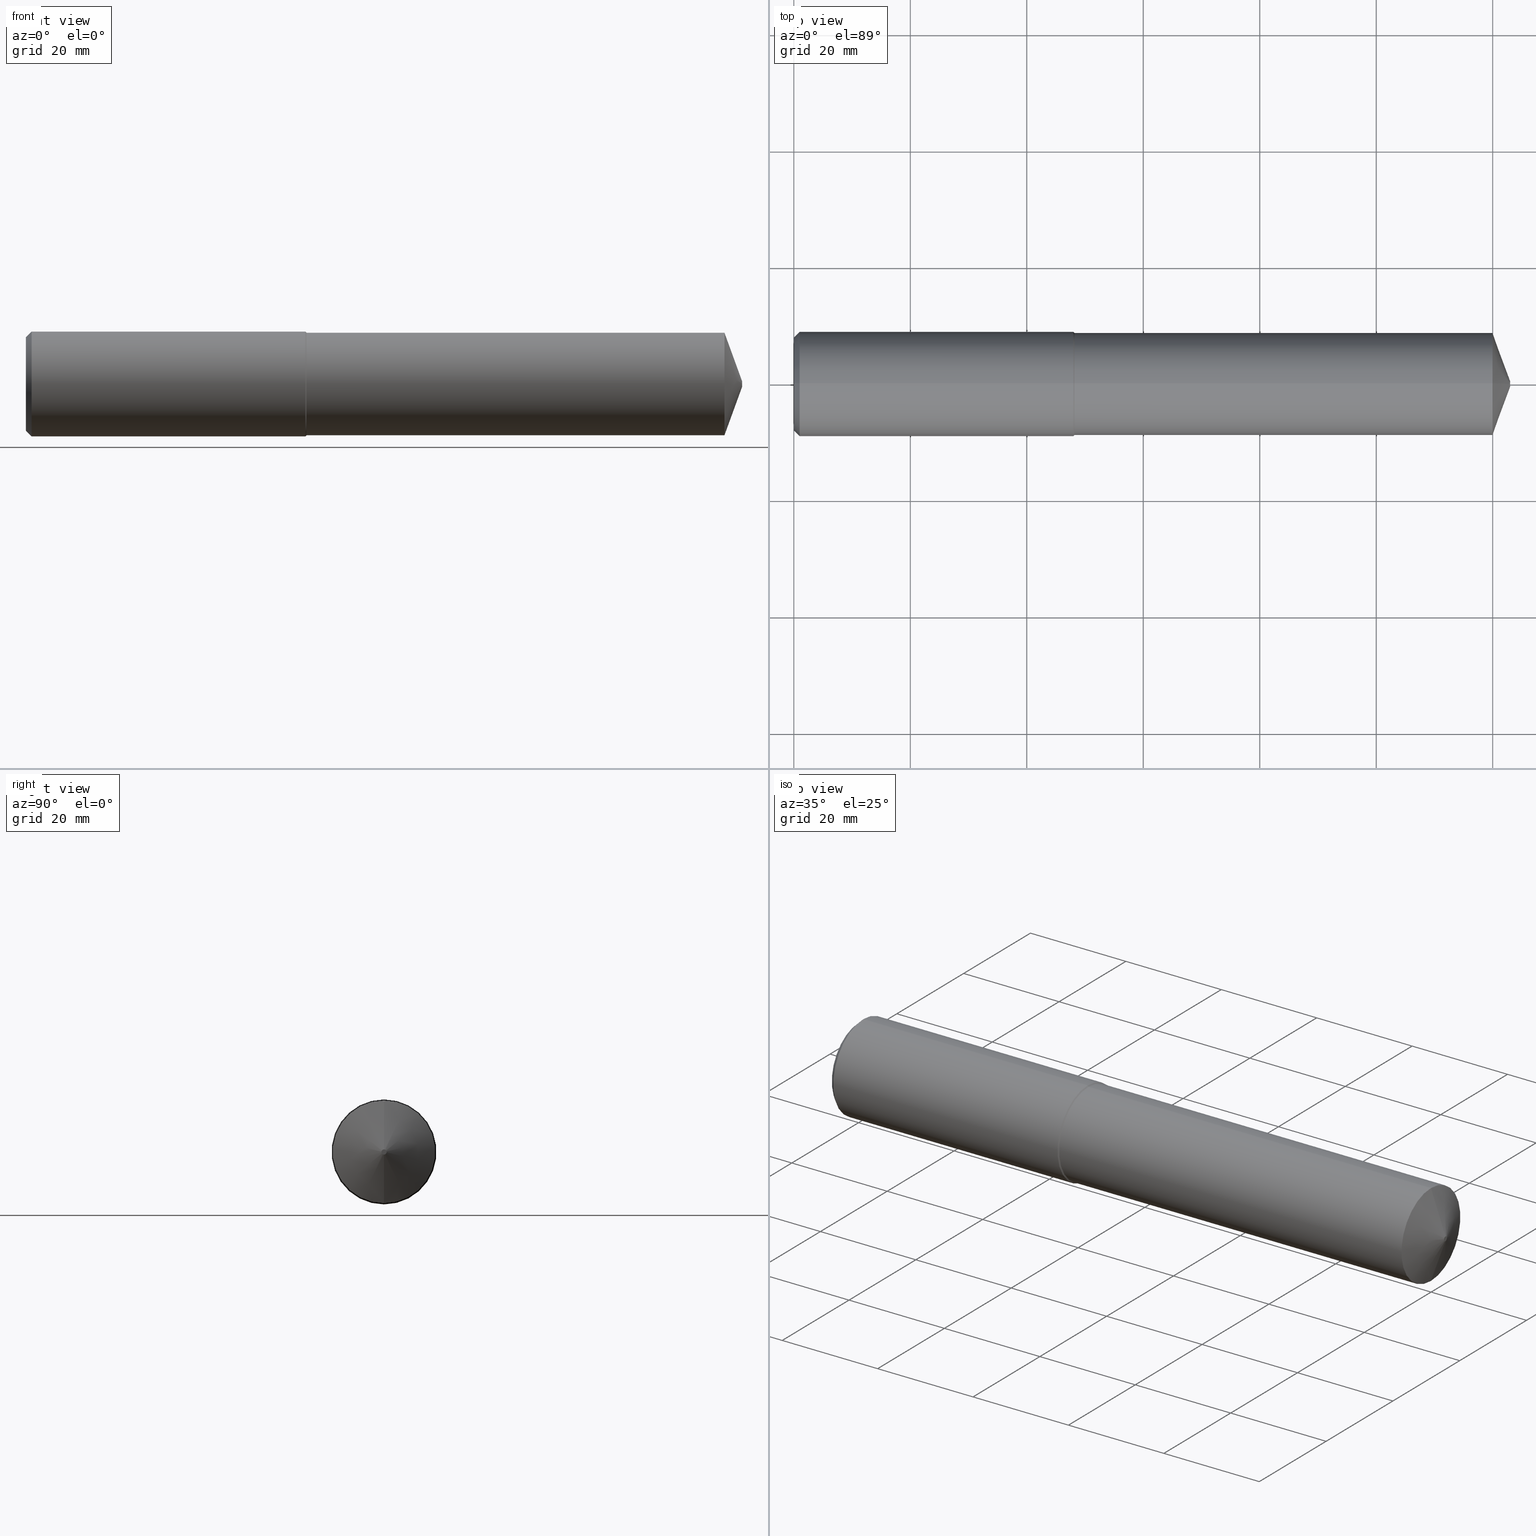
[diagram: canonical four-view strip — front | top / right | iso, engineering-drawing reading convention]
A machine part, canonical four-view strip (front | top / right | iso — engineering-drawing reading convention). The complete STEP part file that produces these views, byte-faithful:
ISO-10303-21;
HEADER;
FILE_DESCRIPTION (( 'STEP AP203' ),
    '1' );
FILE_NAME ('407022-DFX3-693A.STEP',
    '2024-10-03T14:35:29',
    ( '' ),
    ( '' ),
    'SwSTEP 2.0',
    'SolidWorks 2024',
    '' );
FILE_SCHEMA (( 'CONFIG_CONTROL_DESIGN' ));
ENDSEC;

DATA;
#1 = CIRCLE ( 'NONE', #323, 0.3543307086614175261 ) ;
#2 = APPROVAL_PERSON_ORGANIZATION ( #203, #12, #65 ) ;
#3 = CYLINDRICAL_SURFACE ( 'NONE', #207, 0.3465000000000003633 ) ;
#4 = CARTESIAN_POINT ( 'NONE',  ( -8.537024980200822558E-18, 4.098227477461613409E-17, 0.3149606299212597271 ) ) ;
#5 = VECTOR ( 'NONE', #171, 39.37007874015748854 ) ;
#6 = DIRECTION ( 'NONE',  ( -1.000000000000000000, 0.000000000000000000, 0.000000000000000000 ) ) ;
#7 = ADVANCED_FACE ( 'NONE', ( #358 ), #10, .T. ) ;
#8 = DIRECTION ( 'NONE',  ( 1.000000000000000000, -0.000000000000000000, -0.000000000000000000 ) ) ;
#9 = COORDINATED_UNIVERSAL_TIME_OFFSET ( 8, 0, .BEHIND. ) ;
#10 = CYLINDRICAL_SURFACE ( 'NONE', #52, 0.3543307086614173596 ) ;
#11 = CIRCLE ( 'NONE', #286, 0.01750000000000059841 ) ;
#12 = APPROVAL ( #55, 'UNSPECIFIED' ) ;
#13 = LINE ( 'NONE', #108, #111 ) ;
#14 = VERTEX_POINT ( 'NONE', #299 ) ;
#15 = DIRECTION ( 'NONE',  ( 1.000000000000000000, 0.000000000000000000, -0.000000000000000000 ) ) ;
#16 = VERTEX_POINT ( 'NONE', #4 ) ;
#17 = CARTESIAN_POINT ( 'NONE',  ( 4.842519685039370358, 0.000000000000000000, 0.000000000000000000 ) ) ;
#18 = ORIENTED_EDGE ( 'NONE', *, *, #342, .T. ) ;
#19 = AXIS2_PLACEMENT_3D ( 'NONE', #101, #166, #277 ) ;
#20 = CARTESIAN_POINT ( 'NONE',  ( -0.03808593750000075634, 4.243401159045583642E-17, 0.3465000000000003633 ) ) ;
#21 = EDGE_CURVE ( 'NONE', #167, #16, #102, .T. ) ;
#22 = VERTEX_POINT ( 'NONE', #150 ) ;
#23 = DIRECTION ( 'NONE',  ( 1.000000000000000000, -0.000000000000000000, -0.000000000000000000 ) ) ;
#24 = ORIENTED_EDGE ( 'NONE', *, *, #216, .F. ) ;
#25 = APPLICATION_PROTOCOL_DEFINITION ( 'international standard', 'config_control_design', 1994, #73 ) ;
#26 = COORDINATED_UNIVERSAL_TIME_OFFSET ( 8, 0, .BEHIND. ) ;
#27 = EDGE_CURVE ( 'NONE', #200, #22, #96, .T. ) ;
#28 = CONICAL_SURFACE ( 'NONE', #228, 0.3543307086614172485, 0.7853981633974485010 ) ;
#29 = APPROVAL_STATUS ( 'not_yet_approved' ) ;
#30 = DIRECTION ( 'NONE',  ( 1.000000000000000000, -0.000000000000000000, -0.000000000000000000 ) ) ;
#31 = CIRCLE ( 'NONE', #272, 0.3149606299212597271 ) ;
#32 = CARTESIAN_POINT ( 'NONE',  ( 1.897594488188976802, 4.243401159045581176E-17, -0.3465000000000001967 ) ) ;
#33 = DATE_AND_TIME ( #374, #38 ) ;
#34 = CYLINDRICAL_SURFACE ( 'NONE', #117, 0.3465000000000003633 ) ;
#35 = ADVANCED_FACE ( 'NONE', ( #156 ), #3, .T. ) ;
#36 = AXIS2_PLACEMENT_3D ( 'NONE', #352, #211, #180 ) ;
#37 = DATE_AND_TIME ( #359, #85 ) ;
#38 = LOCAL_TIME ( 7, 35, 29.00000000000000000, #58 ) ;
#39 = LINE ( 'NONE', #348, #356 ) ;
#40 = DIMENSIONAL_EXPONENTS ( 1.000000000000000000, 0.000000000000000000, 0.000000000000000000, 0.000000000000000000, 0.000000000000000000, 0.000000000000000000, 0.000000000000000000 ) ;
#41 = CARTESIAN_POINT ( 'NONE',  ( -8.537024980200822558E-18, 0.000000000000000000, -0.3149606299212597271 ) ) ;
#42 = APPLICATION_CONTEXT ( 'configuration controlled 3d designs of mechanical parts and assemblies' ) ;
#43 = DIRECTION ( 'NONE',  ( 0.000000000000000000, 0.000000000000000000, -1.000000000000000000 ) ) ;
#44 = ORIENTED_EDGE ( 'NONE', *, *, #149, .T. ) ;
#45 = AXIS2_PLACEMENT_3D ( 'NONE', #64, #69, #326 ) ;
#46 = DIRECTION ( 'NONE',  ( -0.3420201433256673806, 1.150791560227850763E-16, -0.9396926207859088720 ) ) ;
#47 = DIRECTION ( 'NONE',  ( 0.000000000000000000, 0.000000000000000000, -1.000000000000000000 ) ) ;
#48 = ORIENTED_EDGE ( 'NONE', *, *, #202, .T. ) ;
#49 = DIRECTION ( 'NONE',  ( 1.000000000000000000, -0.000000000000000000, -0.000000000000000000 ) ) ;
#50 = EDGE_CURVE ( 'NONE', #167, #144, #39, .T. ) ;
#51 = ORIENTED_EDGE ( 'NONE', *, *, #375, .F. ) ;
#52 = AXIS2_PLACEMENT_3D ( 'NONE', #239, #152, #188 ) ;
#53 = CARTESIAN_POINT ( 'NONE',  ( 1.897594488188976802, 0.000000000000000000, 0.3465000000000001967 ) ) ;
#54 = LOCAL_TIME ( 7, 35, 29.00000000000000000, #181 ) ;
#55 = APPROVAL_STATUS ( 'not_yet_approved' ) ;
#56 = ORIENTED_EDGE ( 'NONE', *, *, #21, .T. ) ;
#57 = CC_DESIGN_DATE_AND_TIME_ASSIGNMENT ( #33, #176, ( #279 ) ) ;
#58 = COORDINATED_UNIVERSAL_TIME_OFFSET ( 8, 0, .BEHIND. ) ;
#59 = ORIENTED_EDGE ( 'NONE', *, *, #210, .T. ) ;
#60 = DIRECTION ( 'NONE',  ( 1.000000000000000000, 0.000000000000000000, 0.000000000000000000 ) ) ;
#61 = ORIENTED_EDGE ( 'NONE', *, *, #330, .T. ) ;
#62 = CIRCLE ( 'NONE', #135, 0.3543307086614172485 ) ;
#63 = DESIGN_CONTEXT ( 'detailed design', #42, 'design' ) ;
#64 = CARTESIAN_POINT ( 'NONE',  ( 1.897594488188976802, 0.000000000000000000, 0.000000000000000000 ) ) ;
#65 = APPROVAL_ROLE ( '' ) ;
#66 = ADVANCED_FACE ( 'NONE', ( #235 ), #121, .T. ) ;
#67 = CARTESIAN_POINT ( 'NONE',  ( 4.842519685039370358, 0.000000000000000000, 0.000000000000000000 ) ) ;
#68 = DATE_AND_TIME ( #125, #290 ) ;
#69 = DIRECTION ( 'NONE',  ( -1.000000000000000000, 0.000000000000000000, 0.000000000000000000 ) ) ;
#70 = CONICAL_SURFACE ( 'NONE', #45, 0.3465000000000001967, 0.7853981633974265186 ) ;
#71 = DIRECTION ( 'NONE',  ( -1.000000000000000000, 0.000000000000000000, 0.000000000000000000 ) ) ;
#72 = ORIENTED_EDGE ( 'NONE', *, *, #284, .F. ) ;
#73 = APPLICATION_CONTEXT ( 'configuration controlled 3d designs of mechanical parts and assemblies' ) ;
#74 = DIRECTION ( 'NONE',  ( 0.000000000000000000, 0.000000000000000000, -1.000000000000000000 ) ) ;
#75 = ORIENTED_EDGE ( 'NONE', *, *, #224, .F. ) ;
#76 = AXIS2_PLACEMENT_3D ( 'NONE', #163, #336, #129 ) ;
#77 = PERSON ( 'UNSPECIFIED', 'UNSPECIFIED', 'UNSPECIFIED', ('UNSPECIFIED'), ('UNSPECIFIED'), ('UNSPECIFIED') ) ;
#78 = CARTESIAN_POINT ( 'NONE',  ( 1.889763779527559251, 0.000000000000000000, 0.000000000000000000 ) ) ;
#79 = VERTEX_POINT ( 'NONE', #208 ) ;
#80 = DIRECTION ( 'NONE',  ( 0.000000000000000000, 0.000000000000000000, -1.000000000000000000 ) ) ;
#81 = ORIENTED_EDGE ( 'NONE', *, *, #284, .T. ) ;
#82 = LINE ( 'NONE', #367, #243 ) ;
#83 = EDGE_LOOP ( 'NONE', ( #305, #226, #161, #61 ) ) ;
#84 = CARTESIAN_POINT ( 'NONE',  ( 0.03937007874015747977, 0.000000000000000000, 0.000000000000000000 ) ) ;
#85 = LOCAL_TIME ( 7, 35, 29.00000000000000000, #275 ) ;
#86 = CC_DESIGN_PERSON_AND_ORGANIZATION_ASSIGNMENT ( #174, #320, ( #234 ) ) ;
#87 = LENGTH_MEASURE_WITH_UNIT ( LENGTH_MEASURE( 0.02539999999999999897 ), #312 );
#88 = APPROVAL_DATE_TIME ( #122, #231 ) ;
#89 = PERSON_AND_ORGANIZATION_ROLE ( 'design_supplier' ) ;
#90 = VECTOR ( 'NONE', #46, 39.37007874015748143 ) ;
#91 = ADVANCED_FACE ( 'NONE', ( #126 ), #301, .T. ) ;
#92 = CARTESIAN_POINT ( 'NONE',  ( 4.842519685039370358, 0.000000000000000000, 0.000000000000000000 ) ) ;
#93 = CC_DESIGN_PERSON_AND_ORGANIZATION_ASSIGNMENT ( #343, #89, ( #345 ) ) ;
#94 = DIRECTION ( 'NONE',  ( -0.7071067811865627828, 8.659560562354743039E-17, -0.7071067811865320296 ) ) ;
#95 = DIRECTION ( 'NONE',  ( 1.000000000000000000, -0.000000000000000000, -0.000000000000000000 ) ) ;
#96 = LINE ( 'NONE', #263, #344 ) ;
#97 = AXIS2_PLACEMENT_3D ( 'NONE', #17, #255, #80 ) ;
#98 = PLANE ( 'NONE',  #148 ) ;
#99 = DIRECTION ( 'NONE',  ( 1.000000000000000000, -0.000000000000000000, -0.000000000000000000 ) ) ;
#100 = PRODUCT_RELATED_PRODUCT_CATEGORY ( 'detail', '', ( #234 ) ) ;
#101 = CARTESIAN_POINT ( 'NONE',  ( -0.03808593750000075634, 0.000000000000000000, 0.000000000000000000 ) ) ;
#102 = CIRCLE ( 'NONE', #169, 0.3149606299212597271 ) ;
#103 = APPROVAL ( #327, 'UNSPECIFIED' ) ;
#104 = ORIENTED_EDGE ( 'NONE', *, *, #27, .F. ) ;
#105 = CARTESIAN_POINT ( 'NONE',  ( -0.03808593750000075634, 0.000000000000000000, -0.3543307086614173596 ) ) ;
#106 = EDGE_LOOP ( 'NONE', ( #252, #317, #113, #223 ) ) ;
#107 = MANIFOLD_SOLID_BREP ( 'Body', #313 ) ;
#108 = CARTESIAN_POINT ( 'NONE',  ( -0.03808593750000075634, 0.000000000000000000, -0.3465000000000003633 ) ) ;
#109 = EDGE_LOOP ( 'NONE', ( #302, #48, #334, #24 ) ) ;
#110 = DIRECTION ( 'NONE',  ( 1.000000000000000000, -0.000000000000000000, -0.000000000000000000 ) ) ;
#111 = VECTOR ( 'NONE', #49, 39.37007874015748143 ) ;
#112 = CALENDAR_DATE ( 2024, 3, 10 ) ;
#113 = ORIENTED_EDGE ( 'NONE', *, *, #251, .T. ) ;
#114 = EDGE_LOOP ( 'NONE', ( #276, #136, #331, #194 ) ) ;
#115 = ADVANCED_FACE ( 'NONE', ( #350 ), #70, .T. ) ;
#116 =( NAMED_UNIT ( * ) SI_UNIT ( $, .STERADIAN. ) SOLID_ANGLE_UNIT ( ) );
#117 = AXIS2_PLACEMENT_3D ( 'NONE', #184, #8, #124 ) ;
#118 = DIRECTION ( 'NONE',  ( 0.7071067811865473507, 0.000000000000000000, -0.7071067811865476838 ) ) ;
#119 = EDGE_CURVE ( 'NONE', #144, #200, #142, .T. ) ;
#120 = DIRECTION ( 'NONE',  ( 1.000000000000000000, -0.000000000000000000, -0.000000000000000000 ) ) ;
#121 = CONICAL_SURFACE ( 'NONE', #373, 0.01750000000000059841, 1.221730476396032161 ) ;
#122 = DATE_AND_TIME ( #232, #262 ) ;
#123 = CARTESIAN_POINT ( 'NONE',  ( 0.03937007874015747977, 0.000000000000000000, 0.000000000000000000 ) ) ;
#124 = DIRECTION ( 'NONE',  ( 0.000000000000000000, 0.000000000000000000, -1.000000000000000000 ) ) ;
#125 = CALENDAR_DATE ( 2024, 3, 10 ) ;
#126 = FACE_OUTER_BOUND ( 'NONE', #133, .T. ) ;
#127 = VECTOR ( 'NONE', #99, 39.37007874015748143 ) ;
#128 = CC_DESIGN_APPROVAL ( #103, ( #198 ) ) ;
#129 = DIRECTION ( 'NONE',  ( 0.000000000000000000, 0.000000000000000000, -1.000000000000000000 ) ) ;
#130 = ORIENTED_EDGE ( 'NONE', *, *, #50, .F. ) ;
#131 = CARTESIAN_POINT ( 'NONE',  ( 1.897594488188976802, 0.000000000000000000, 0.000000000000000000 ) ) ;
#132 = ADVANCED_FACE ( 'NONE', ( #242 ), #281, .T. ) ;
#133 = EDGE_LOOP ( 'NONE', ( #192, #51, #282, #337 ) ) ;
#134 = DIRECTION ( 'NONE',  ( 0.000000000000000000, 0.000000000000000000, -1.000000000000000000 ) ) ;
#135 = AXIS2_PLACEMENT_3D ( 'NONE', #304, #218, #47 ) ;
#136 = ORIENTED_EDGE ( 'NONE', *, *, #27, .T. ) ;
#137 = DIRECTION ( 'NONE',  ( 1.000000000000000000, -0.000000000000000000, -0.000000000000000000 ) ) ;
#138 = ORIENTED_EDGE ( 'NONE', *, *, #362, .T. ) ;
#139 = CYLINDRICAL_SURFACE ( 'NONE', #19, 0.3543307086614173596 ) ;
#140 = ORIENTED_EDGE ( 'NONE', *, *, #362, .F. ) ;
#141 = VERTEX_POINT ( 'NONE', #182 ) ;
#142 = CIRCLE ( 'NONE', #191, 0.3543307086614172485 ) ;
#143 = DIRECTION ( 'NONE',  ( 0.000000000000000000, 0.000000000000000000, -1.000000000000000000 ) ) ;
#144 = VERTEX_POINT ( 'NONE', #321 ) ;
#145 = CARTESIAN_POINT ( 'NONE',  ( 4.722773477965789723, 4.243401159045585491E-17, -0.3465000000000006408 ) ) ;
#146 = EDGE_CURVE ( 'NONE', #141, #165, #268, .T. ) ;
#147 = CARTESIAN_POINT ( 'NONE',  ( 1.897594488188976802, 0.000000000000000000, 0.000000000000000000 ) ) ;
#148 = AXIS2_PLACEMENT_3D ( 'NONE', #215, #15, #338 ) ;
#149 = EDGE_CURVE ( 'NONE', #256, #79, #11, .T. ) ;
#150 = CARTESIAN_POINT ( 'NONE',  ( 1.889763779527559251, 0.000000000000000000, 0.3543307086614175261 ) ) ;
#151 = UNCERTAINTY_MEASURE_WITH_UNIT (LENGTH_MEASURE( 1.000000000000000082E-05 ), #378, 'distance_accuracy_value', 'NONE');
#152 = DIRECTION ( 'NONE',  ( 1.000000000000000000, -0.000000000000000000, -0.000000000000000000 ) ) ;
#153 = APPROVAL_ROLE ( '' ) ;
#154 = DIRECTION ( 'NONE',  ( 1.000000000000000000, -0.000000000000000000, -0.000000000000000000 ) ) ;
#155 = CIRCLE ( 'NONE', #357, 0.3465000000000001967 ) ;
#156 = FACE_OUTER_BOUND ( 'NONE', #106, .T. ) ;
#157 = ADVANCED_FACE ( 'NONE', ( #298 ), #34, .T. ) ;
#158 = CARTESIAN_POINT ( 'NONE',  ( 4.722773477965789723, 0.000000000000000000, 0.3465000000000006408 ) ) ;
#159 = DIRECTION ( 'NONE',  ( -1.000000000000000000, 0.000000000000000000, 0.000000000000000000 ) ) ;
#160 = VECTOR ( 'NONE', #190, 39.37007874015748143 ) ;
#161 = ORIENTED_EDGE ( 'NONE', *, *, #216, .T. ) ;
#162 = CC_DESIGN_PERSON_AND_ORGANIZATION_ASSIGNMENT ( #259, #376, ( #345 ) ) ;
#163 = CARTESIAN_POINT ( 'NONE',  ( 4.722773477965789723, 0.000000000000000000, 0.000000000000000000 ) ) ;
#164 = PERSON_AND_ORGANIZATION ( #77, #296 ) ;
#165 = VERTEX_POINT ( 'NONE', #240 ) ;
#166 = DIRECTION ( 'NONE',  ( 1.000000000000000000, -0.000000000000000000, -0.000000000000000000 ) ) ;
#167 = VERTEX_POINT ( 'NONE', #41 ) ;
#168 = DIRECTION ( 'NONE',  ( 1.000000000000000000, -0.000000000000000000, -0.000000000000000000 ) ) ;
#169 = AXIS2_PLACEMENT_3D ( 'NONE', #297, #120, #209 ) ;
#170 = ORIENTED_EDGE ( 'NONE', *, *, #119, .F. ) ;
#171 = DIRECTION ( 'NONE',  ( -0.7071067811865627828, 0.000000000000000000, 0.7071067811865320296 ) ) ;
#172 = DIRECTION ( 'NONE',  ( 0.000000000000000000, 0.000000000000000000, -1.000000000000000000 ) ) ;
#173 = VERTEX_POINT ( 'NONE', #158 ) ;
#174 = PERSON_AND_ORGANIZATION ( #77, #296 ) ;
#175 = CONICAL_SURFACE ( 'NONE', #185, 0.01750000000000059841, 1.221730476396032161 ) ;
#176 = DATE_TIME_ROLE ( 'creation_date' ) ;
#177 = CC_DESIGN_DATE_AND_TIME_ASSIGNMENT ( #68, #183, ( #198 ) ) ;
#178 = PERSON_AND_ORGANIZATION_ROLE ( 'classification_officer' ) ;
#179 = VECTOR ( 'NONE', #23, 39.37007874015748143 ) ;
#180 = DIRECTION ( 'NONE',  ( 0.000000000000000000, 0.000000000000000000, -1.000000000000000000 ) ) ;
#181 = COORDINATED_UNIVERSAL_TIME_OFFSET ( 8, 0, .BEHIND. ) ;
#182 = CARTESIAN_POINT ( 'NONE',  ( 1.897594488188976802, 0.000000000000000000, -0.3465000000000001967 ) ) ;
#183 = DATE_TIME_ROLE ( 'classification_date' ) ;
#184 = CARTESIAN_POINT ( 'NONE',  ( -0.03808593750000075634, 0.000000000000000000, 0.000000000000000000 ) ) ;
#185 = AXIS2_PLACEMENT_3D ( 'NONE', #196, #332, #307 ) ;
#186 = ADVANCED_FACE ( 'NONE', ( #269 ), #98, .T. ) ;
#187 = DIRECTION ( 'NONE',  ( 0.000000000000000000, 0.000000000000000000, -1.000000000000000000 ) ) ;
#188 = DIRECTION ( 'NONE',  ( 0.000000000000000000, 0.000000000000000000, -1.000000000000000000 ) ) ;
#189 = ADVANCED_FACE ( 'NONE', ( #300 ), #28, .T. ) ;
#190 = DIRECTION ( 'NONE',  ( -0.3420201433256673806, 0.000000000000000000, 0.9396926207859088720 ) ) ;
#191 = AXIS2_PLACEMENT_3D ( 'NONE', #123, #292, #187 ) ;
#192 = ORIENTED_EDGE ( 'NONE', *, *, #146, .F. ) ;
#193 = DIRECTION ( 'NONE',  ( 0.000000000000000000, 0.000000000000000000, -1.000000000000000000 ) ) ;
#194 = ORIENTED_EDGE ( 'NONE', *, *, #316, .F. ) ;
#195 = DIRECTION ( 'NONE',  ( 1.000000000000000000, -0.000000000000000000, -0.000000000000000000 ) ) ;
#196 = CARTESIAN_POINT ( 'NONE',  ( 4.842519685039370358, 0.000000000000000000, 0.000000000000000000 ) ) ;
#197 = CIRCLE ( 'NONE', #76, 0.3465000000000005298 ) ;
#198 = SECURITY_CLASSIFICATION ( '', '', #205 ) ;
#199 = FACE_OUTER_BOUND ( 'NONE', #217, .T. ) ;
#200 = VERTEX_POINT ( 'NONE', #253 ) ;
#201 = APPLICATION_PROTOCOL_DEFINITION ( 'international standard', 'config_control_design', 1994, #42 ) ;
#202 = EDGE_CURVE ( 'NONE', #256, #360, #369, .T. ) ;
#203 = PERSON_AND_ORGANIZATION ( #77, #296 ) ;
#204 = CC_DESIGN_APPROVAL ( #12, ( #279 ) ) ;
#205 = SECURITY_CLASSIFICATION_LEVEL ( 'unclassified' ) ;
#206 =( NAMED_UNIT ( * ) PLANE_ANGLE_UNIT ( ) SI_UNIT ( $, .RADIAN. ) );
#207 = AXIS2_PLACEMENT_3D ( 'NONE', #324, #237, #264 ) ;
#208 = CARTESIAN_POINT ( 'NONE',  ( 4.842519685039370358, 0.000000000000000000, 0.01750000000000059841 ) ) ;
#209 = DIRECTION ( 'NONE',  ( 0.000000000000000000, 0.000000000000000000, -1.000000000000000000 ) ) ;
#210 = EDGE_CURVE ( 'NONE', #165, #22, #1, .T. ) ;
#211 = DIRECTION ( 'NONE',  ( 1.000000000000000000, -0.000000000000000000, -0.000000000000000000 ) ) ;
#212 = EDGE_LOOP ( 'NONE', ( #363, #44 ) ) ;
#213 = AXIS2_PLACEMENT_3D ( 'NONE', #131, #168, #134 ) ;
#214 = APPROVAL_PERSON_ORGANIZATION ( #285, #231, #153 ) ;
#215 = CARTESIAN_POINT ( 'NONE',  ( 4.842519685039370358, 0.000000000000000000, 0.000000000000000000 ) ) ;
#216 = EDGE_CURVE ( 'NONE', #79, #173, #219, .T. ) ;
#217 = EDGE_LOOP ( 'NONE', ( #221, #140 ) ) ;
#218 = DIRECTION ( 'NONE',  ( 1.000000000000000000, -0.000000000000000000, -0.000000000000000000 ) ) ;
#219 = LINE ( 'NONE', #227, #160 ) ;
#220 = CIRCLE ( 'NONE', #261, 0.3465000000000005298 ) ;
#221 = ORIENTED_EDGE ( 'NONE', *, *, #21, .F. ) ;
#222 = CARTESIAN_POINT ( 'NONE',  ( 1.889763779527559251, 0.000000000000000000, 0.000000000000000000 ) ) ;
#223 = ORIENTED_EDGE ( 'NONE', *, *, #330, .F. ) ;
#224 = EDGE_CURVE ( 'NONE', #22, #165, #236, .T. ) ;
#225 = CARTESIAN_POINT ( 'NONE',  ( 4.842519685039370358, 2.228857174448189611E-17, -0.01750000000000059841 ) ) ;
#226 = ORIENTED_EDGE ( 'NONE', *, *, #353, .F. ) ;
#227 = CARTESIAN_POINT ( 'NONE',  ( 4.842519685039370358, 0.000000000000000000, 0.01750000000000059841 ) ) ;
#228 = AXIS2_PLACEMENT_3D ( 'NONE', #84, #137, #43 ) ;
#229 = ORIENTED_EDGE ( 'NONE', *, *, #251, .F. ) ;
#230 = APPROVAL_DATE_TIME ( #287, #12 ) ;
#231 = APPROVAL ( #29, 'UNSPECIFIED' ) ;
#232 = CALENDAR_DATE ( 2024, 3, 10 ) ;
#233 = CC_DESIGN_APPROVAL ( #231, ( #345 ) ) ;
#234 = PRODUCT ( '407022-DFX3-693A', '407022-DFX3-693A', '', ( #346 ) ) ;
#235 = FACE_OUTER_BOUND ( 'NONE', #109, .T. ) ;
#236 = CIRCLE ( 'NONE', #295, 0.3543307086614175261 ) ;
#237 = DIRECTION ( 'NONE',  ( 1.000000000000000000, -0.000000000000000000, -0.000000000000000000 ) ) ;
#238 = ADVANCED_FACE ( 'NONE', ( #199 ), #329, .T. ) ;
#239 = CARTESIAN_POINT ( 'NONE',  ( -0.03808593750000075634, 0.000000000000000000, 0.000000000000000000 ) ) ;
#240 = CARTESIAN_POINT ( 'NONE',  ( 1.889763779527559251, 4.339299682018183145E-17, -0.3543307086614175261 ) ) ;
#241 = APPROVAL_ROLE ( '' ) ;
#242 = FACE_OUTER_BOUND ( 'NONE', #254, .T. ) ;
#243 = VECTOR ( 'NONE', #245, 39.37007874015748143 ) ;
#244 =( GEOMETRIC_REPRESENTATION_CONTEXT ( 3 ) GLOBAL_UNCERTAINTY_ASSIGNED_CONTEXT ( ( #151 ) ) GLOBAL_UNIT_ASSIGNED_CONTEXT ( ( #378, #206, #116 ) ) REPRESENTATION_CONTEXT ( 'NONE', 'WORKASPACE' ) );
#245 = DIRECTION ( 'NONE',  ( 0.7071067811865473507, 8.659560562354935323E-17, 0.7071067811865476838 ) ) ;
#246 = EDGE_LOOP ( 'NONE', ( #310, #18, #340, #229 ) ) ;
#247 = LINE ( 'NONE', #20, #179 ) ;
#248 = ORIENTED_EDGE ( 'NONE', *, *, #316, .T. ) ;
#249 = CARTESIAN_POINT ( 'NONE',  ( 4.842519685039370358, 2.143131898507941560E-18, -0.01750000000000059841 ) ) ;
#250 = APPROVAL_PERSON_ORGANIZATION ( #164, #103, #241 ) ;
#251 = EDGE_CURVE ( 'NONE', #141, #360, #13, .T. ) ;
#252 = ORIENTED_EDGE ( 'NONE', *, *, #342, .F. ) ;
#253 = CARTESIAN_POINT ( 'NONE',  ( 0.03937007874015747977, 4.339299682018180063E-17, 0.3543307086614172485 ) ) ;
#254 = EDGE_LOOP ( 'NONE', ( #72, #138, #314, #354 ) ) ;
#255 = DIRECTION ( 'NONE',  ( 1.000000000000000000, -0.000000000000000000, -0.000000000000000000 ) ) ;
#256 = VERTEX_POINT ( 'NONE', #225 ) ;
#257 = EDGE_CURVE ( 'NONE', #360, #173, #197, .T. ) ;
#258 = DIRECTION ( 'NONE',  ( 0.000000000000000000, 0.000000000000000000, 1.000000000000000000 ) ) ;
#259 = PERSON_AND_ORGANIZATION ( #77, #296 ) ;
#260 = DIRECTION ( 'NONE',  ( 1.000000000000000000, -0.000000000000000000, -0.000000000000000000 ) ) ;
#261 = AXIS2_PLACEMENT_3D ( 'NONE', #335, #274, #74 ) ;
#262 = LOCAL_TIME ( 7, 35, 29.00000000000000000, #26 ) ;
#263 = CARTESIAN_POINT ( 'NONE',  ( -0.03808593750000075634, 4.339299682018181296E-17, 0.3543307086614173596 ) ) ;
#264 = DIRECTION ( 'NONE',  ( 0.000000000000000000, 0.000000000000000000, -1.000000000000000000 ) ) ;
#265 = EDGE_CURVE ( 'NONE', #141, #14, #289, .T. ) ;
#266 = CARTESIAN_POINT ( 'NONE',  ( -8.537024980200822558E-18, 0.000000000000000000, 0.000000000000000000 ) ) ;
#267 = DIRECTION ( 'NONE',  ( 0.000000000000000000, 0.000000000000000000, 1.000000000000000000 ) ) ;
#268 = LINE ( 'NONE', #32, #349 ) ;
#269 = FACE_OUTER_BOUND ( 'NONE', #212, .T. ) ;
#270 = DIRECTION ( 'NONE',  ( 0.000000000000000000, 0.000000000000000000, 1.000000000000000000 ) ) ;
#271 = CIRCLE ( 'NONE', #97, 0.01750000000000059841 ) ;
#272 = AXIS2_PLACEMENT_3D ( 'NONE', #266, #30, #143 ) ;
#273 = SHAPE_DEFINITION_REPRESENTATION ( #372, #278 ) ;
#274 = DIRECTION ( 'NONE',  ( 1.000000000000000000, -0.000000000000000000, -0.000000000000000000 ) ) ;
#275 = COORDINATED_UNIVERSAL_TIME_OFFSET ( 8, 0, .BEHIND. ) ;
#276 = ORIENTED_EDGE ( 'NONE', *, *, #119, .T. ) ;
#277 = DIRECTION ( 'NONE',  ( 0.000000000000000000, 0.000000000000000000, -1.000000000000000000 ) ) ;
#278 = ADVANCED_BREP_SHAPE_REPRESENTATION ( '407022-DFX3-693A', ( #107, #308 ), #244 ) ;
#279 = PRODUCT_DEFINITION ( 'UNKNOWN', '', #345, #63 ) ;
#280 = LINE ( 'NONE', #53, #5 ) ;
#281 = CONICAL_SURFACE ( 'NONE', #36, 0.3543307086614172485, 0.7853981633974485010 ) ;
#282 = ORIENTED_EDGE ( 'NONE', *, *, #291, .T. ) ;
#283 = LINE ( 'NONE', #105, #127 ) ;
#284 = EDGE_CURVE ( 'NONE', #16, #200, #82, .T. ) ;
#285 = PERSON_AND_ORGANIZATION ( #77, #296 ) ;
#286 = AXIS2_PLACEMENT_3D ( 'NONE', #67, #95, #294 ) ;
#287 = DATE_AND_TIME ( #112, #54 ) ;
#288 = ADVANCED_FACE ( 'NONE', ( #361 ), #175, .T. ) ;
#289 = CIRCLE ( 'NONE', #213, 0.3465000000000001967 ) ;
#290 = LOCAL_TIME ( 7, 35, 29.00000000000000000, #9 ) ;
#291 = EDGE_CURVE ( 'NONE', #14, #22, #280, .T. ) ;
#292 = DIRECTION ( 'NONE',  ( 1.000000000000000000, -0.000000000000000000, -0.000000000000000000 ) ) ;
#293 = PERSON_AND_ORGANIZATION ( #77, #296 ) ;
#294 = DIRECTION ( 'NONE',  ( 0.000000000000000000, 0.000000000000000000, -1.000000000000000000 ) ) ;
#295 = AXIS2_PLACEMENT_3D ( 'NONE', #78, #110, #306 ) ;
#296 = ORGANIZATION ( 'UNSPECIFIED', 'UNSPECIFIED', '' ) ;
#297 = CARTESIAN_POINT ( 'NONE',  ( -8.537024980200822558E-18, 0.000000000000000000, 0.000000000000000000 ) ) ;
#298 = FACE_OUTER_BOUND ( 'NONE', #246, .T. ) ;
#299 = CARTESIAN_POINT ( 'NONE',  ( 1.897594488188976802, 4.243401159045583025E-17, 0.3465000000000001967 ) ) ;
#300 = FACE_OUTER_BOUND ( 'NONE', #370, .T. ) ;
#301 = CONICAL_SURFACE ( 'NONE', #366, 0.3465000000000001967, 0.7853981633974265186 ) ;
#302 = ORIENTED_EDGE ( 'NONE', *, *, #149, .F. ) ;
#303 = CC_DESIGN_PERSON_AND_ORGANIZATION_ASSIGNMENT ( #315, #178, ( #198 ) ) ;
#304 = CARTESIAN_POINT ( 'NONE',  ( 0.03937007874015747977, 0.000000000000000000, 0.000000000000000000 ) ) ;
#305 = ORIENTED_EDGE ( 'NONE', *, *, #202, .F. ) ;
#306 = DIRECTION ( 'NONE',  ( 0.000000000000000000, 0.000000000000000000, -1.000000000000000000 ) ) ;
#307 = DIRECTION ( 'NONE',  ( 0.000000000000000000, 0.000000000000000000, 1.000000000000000000 ) ) ;
#308 = AXIS2_PLACEMENT_3D ( 'NONE', #351, #258, #60 ) ;
#309 = ORIENTED_EDGE ( 'NONE', *, *, #265, .F. ) ;
#310 = ORIENTED_EDGE ( 'NONE', *, *, #265, .T. ) ;
#311 = PERSON_AND_ORGANIZATION_ROLE ( 'creator' ) ;
#312 =( LENGTH_UNIT ( ) NAMED_UNIT ( * ) SI_UNIT ( $, .METRE. ) );
#313 = CLOSED_SHELL ( 'NONE', ( #189, #347, #115, #157, #66, #238, #186, #288, #35, #91, #7, #132 ) ) ;
#314 = ORIENTED_EDGE ( 'NONE', *, *, #50, .T. ) ;
#315 = PERSON_AND_ORGANIZATION ( #77, #296 ) ;
#316 = EDGE_CURVE ( 'NONE', #144, #165, #283, .T. ) ;
#317 = ORIENTED_EDGE ( 'NONE', *, *, #375, .T. ) ;
#318 = CC_DESIGN_PERSON_AND_ORGANIZATION_ASSIGNMENT ( #293, #311, ( #279 ) ) ;
#319 = DIRECTION ( 'NONE',  ( 0.000000000000000000, 0.000000000000000000, 1.000000000000000000 ) ) ;
#320 = PERSON_AND_ORGANIZATION_ROLE ( 'design_owner' ) ;
#321 = CARTESIAN_POINT ( 'NONE',  ( 0.03937007874015747977, 0.000000000000000000, -0.3543307086614172485 ) ) ;
#322 = CARTESIAN_POINT ( 'NONE',  ( 1.897594488188976802, 0.000000000000000000, 0.000000000000000000 ) ) ;
#323 = AXIS2_PLACEMENT_3D ( 'NONE', #222, #195, #193 ) ;
#324 = CARTESIAN_POINT ( 'NONE',  ( -0.03808593750000075634, 0.000000000000000000, 0.000000000000000000 ) ) ;
#325 = EDGE_CURVE ( 'NONE', #200, #144, #62, .T. ) ;
#326 = DIRECTION ( 'NONE',  ( 0.000000000000000000, 0.000000000000000000, 1.000000000000000000 ) ) ;
#327 = APPROVAL_STATUS ( 'not_yet_approved' ) ;
#328 = EDGE_LOOP ( 'NONE', ( #309, #365, #59, #377 ) ) ;
#329 = PLANE ( 'NONE',  #333 ) ;
#330 = EDGE_CURVE ( 'NONE', #173, #360, #220, .T. ) ;
#331 = ORIENTED_EDGE ( 'NONE', *, *, #210, .F. ) ;
#332 = DIRECTION ( 'NONE',  ( -1.000000000000000000, 0.000000000000000000, 0.000000000000000000 ) ) ;
#333 = AXIS2_PLACEMENT_3D ( 'NONE', #371, #159, #270 ) ;
#334 = ORIENTED_EDGE ( 'NONE', *, *, #257, .T. ) ;
#335 = CARTESIAN_POINT ( 'NONE',  ( 4.722773477965789723, 0.000000000000000000, 0.000000000000000000 ) ) ;
#336 = DIRECTION ( 'NONE',  ( 1.000000000000000000, -0.000000000000000000, -0.000000000000000000 ) ) ;
#337 = ORIENTED_EDGE ( 'NONE', *, *, #224, .T. ) ;
#338 = DIRECTION ( 'NONE',  ( -0.000000000000000000, 0.000000000000000000, -1.000000000000000000 ) ) ;
#339 = CC_DESIGN_SECURITY_CLASSIFICATION ( #198, ( #345 ) ) ;
#340 = ORIENTED_EDGE ( 'NONE', *, *, #257, .F. ) ;
#341 = ORIENTED_EDGE ( 'NONE', *, *, #325, .T. ) ;
#342 = EDGE_CURVE ( 'NONE', #14, #173, #247, .T. ) ;
#343 = PERSON_AND_ORGANIZATION ( #77, #296 ) ;
#344 = VECTOR ( 'NONE', #154, 39.37007874015748143 ) ;
#345 = PRODUCT_DEFINITION_FORMATION_WITH_SPECIFIED_SOURCE ( 'ANY', '', #234, .NOT_KNOWN. ) ;
#346 = MECHANICAL_CONTEXT ( 'NONE', #73, 'mechanical' ) ;
#347 = ADVANCED_FACE ( 'NONE', ( #364 ), #139, .T. ) ;
#348 = CARTESIAN_POINT ( 'NONE',  ( 0.03937007874015747977, 0.000000000000000000, -0.3543307086614172485 ) ) ;
#349 = VECTOR ( 'NONE', #94, 39.37007874015748854 ) ;
#350 = FACE_OUTER_BOUND ( 'NONE', #328, .T. ) ;
#351 = CARTESIAN_POINT ( 'NONE',  ( 0.000000000000000000, 0.000000000000000000, 0.000000000000000000 ) ) ;
#352 = CARTESIAN_POINT ( 'NONE',  ( 0.03937007874015747977, 0.000000000000000000, 0.000000000000000000 ) ) ;
#353 = EDGE_CURVE ( 'NONE', #79, #256, #271, .T. ) ;
#354 = ORIENTED_EDGE ( 'NONE', *, *, #325, .F. ) ;
#355 = APPROVAL_DATE_TIME ( #37, #103 ) ;
#356 = VECTOR ( 'NONE', #118, 39.37007874015748143 ) ;
#357 = AXIS2_PLACEMENT_3D ( 'NONE', #147, #260, #172 ) ;
#358 = FACE_OUTER_BOUND ( 'NONE', #368, .T. ) ;
#359 = CALENDAR_DATE ( 2024, 3, 10 ) ;
#360 = VERTEX_POINT ( 'NONE', #145 ) ;
#361 = FACE_OUTER_BOUND ( 'NONE', #83, .T. ) ;
#362 = EDGE_CURVE ( 'NONE', #16, #167, #31, .T. ) ;
#363 = ORIENTED_EDGE ( 'NONE', *, *, #353, .T. ) ;
#364 = FACE_OUTER_BOUND ( 'NONE', #114, .T. ) ;
#365 = ORIENTED_EDGE ( 'NONE', *, *, #146, .T. ) ;
#366 = AXIS2_PLACEMENT_3D ( 'NONE', #322, #6, #319 ) ;
#367 = CARTESIAN_POINT ( 'NONE',  ( 0.03937007874015747977, 4.339299682018179447E-17, 0.3543307086614172485 ) ) ;
#368 = EDGE_LOOP ( 'NONE', ( #104, #341, #248, #75 ) ) ;
#369 = LINE ( 'NONE', #249, #90 ) ;
#370 = EDGE_LOOP ( 'NONE', ( #56, #81, #170, #130 ) ) ;
#371 = CARTESIAN_POINT ( 'NONE',  ( -4.821444091131301509E-18, 0.3149606299212597271, 0.000000000000000000 ) ) ;
#372 = PRODUCT_DEFINITION_SHAPE ( 'NONE', 'NONE',  #279 ) ;
#373 = AXIS2_PLACEMENT_3D ( 'NONE', #92, #71, #267 ) ;
#374 = CALENDAR_DATE ( 2024, 3, 10 ) ;
#375 = EDGE_CURVE ( 'NONE', #14, #141, #155, .T. ) ;
#376 = PERSON_AND_ORGANIZATION_ROLE ( 'creator' ) ;
#377 = ORIENTED_EDGE ( 'NONE', *, *, #291, .F. ) ;
#378 =( CONVERSION_BASED_UNIT ( 'INCH', #87 ) LENGTH_UNIT ( ) NAMED_UNIT ( #40 ) );
ENDSEC;
END-ISO-10303-21;
